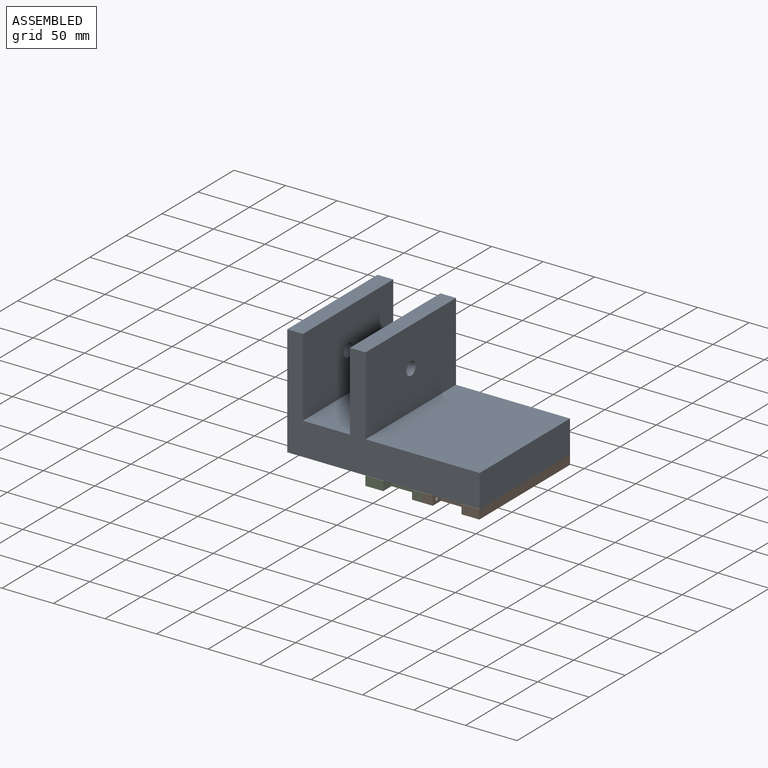
[diagram: assembled view]
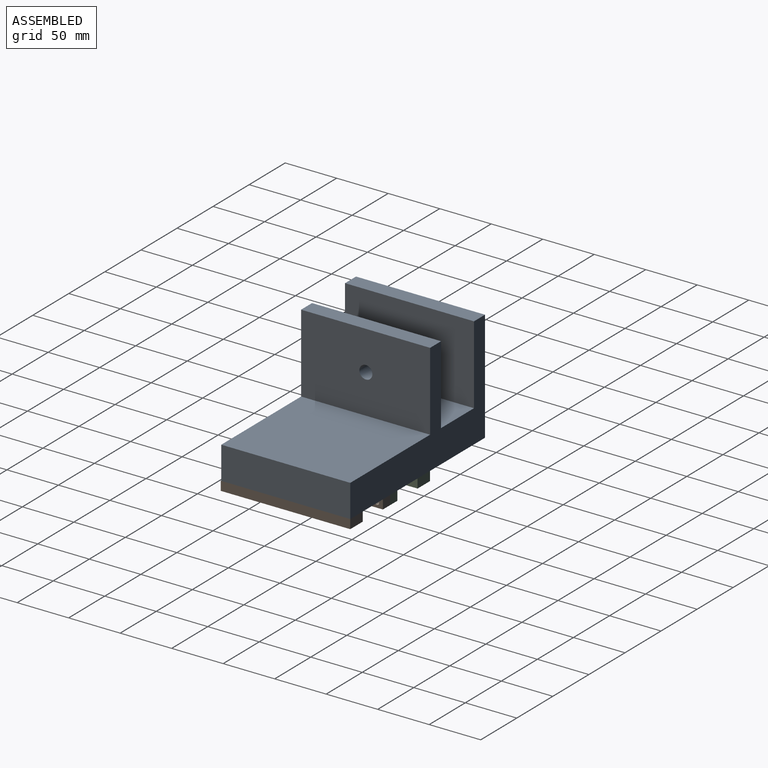
[diagram: assembled view, second angle]
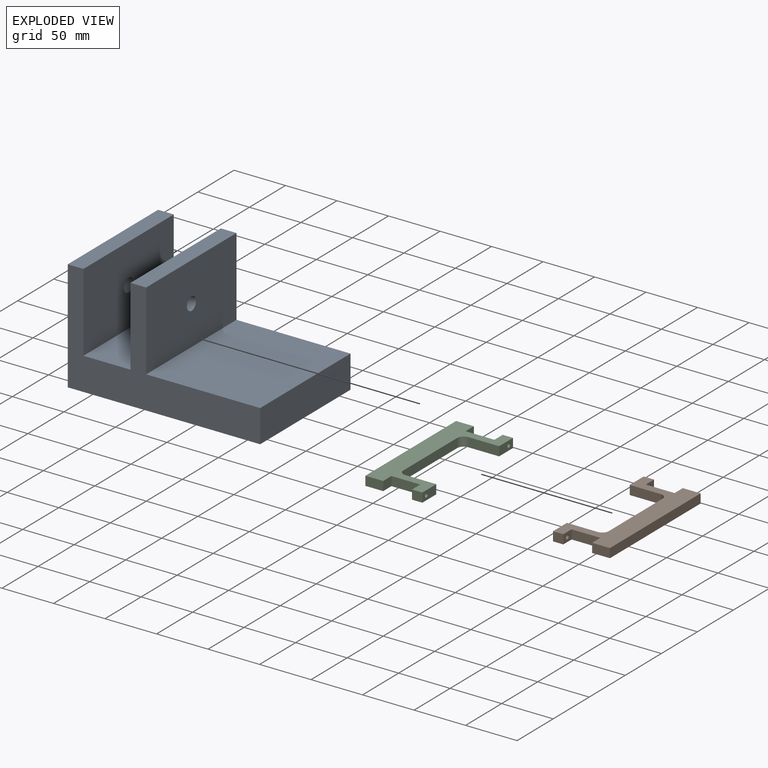
[diagram: exploded view]
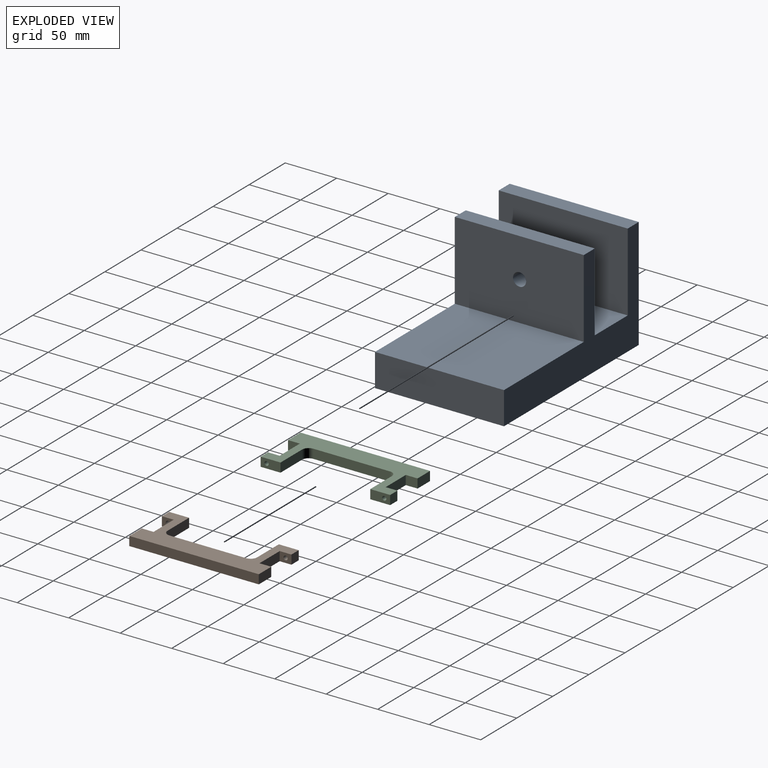
[diagram: exploded view, second angle]
ASSEMBLY  parts=3 mates=2
PART A: 31 faces, bbox 186.8x125.2x108 mm
  f0: plane 125.22x110.67mm, normal (0,0,1), area 13858.7mm2, adj f2,f3,f4,f18
  f1: plane 125.22x45.72mm, normal (0,0,1), area 5725.1mm2, adj f2,f4,f16,f19
  f2: plane 186.79x107.95mm, normal (0,-1,0), area 8247mm2, adj f0,f1,f3,f13,f15,f16,f17,f18
  f3: plane 125.22x31.75mm, normal (1,0,0), area 3975.8mm2, adj f0,f2,f4,f13
  f4: plane 186.79x107.95mm, normal (0,1,0), area 8247mm2, adj f0,f1,f3,f13,f15,f16,f17,f18
  f5: plane 59.79x13.97mm, normal (0,1,0), area 835.3mm2, adj f6,f12,f13,f27
  f6: cylinder r=6.35mm len=13.97mm, axis (0,0,1), area 139.3mm2, adj f5,f7,f13,f25
  f7: plane 74.42x13.97mm, normal (1,0,0), area 1039.7mm2, adj f6,f8,f13,f23
  f8: cylinder r=6.35mm len=13.97mm, axis (0,0,1), area 139.3mm2, adj f7,f9,f13,f24
  f9: plane 59.79x13.97mm, normal (0,-1,0), area 835.3mm2, adj f8,f10,f13,f26
  f10: cylinder r=6.35mm len=13.97mm, axis (0,0,1), area 139.3mm2, adj f9,f11,f13,f28
  f11: plane 74.42x13.97mm, normal (-1,0,0), area 1039.7mm2, adj f10,f12,f13,f30
  f12: cylinder r=6.35mm len=13.97mm, axis (0,0,1), area 139.3mm2, adj f5,f11,f13,f29
  f13: plane 186.79x125.22mm, normal (0,0,-1), area 17109.4mm2, adj f2,f3,f4,f5,f6,f7,f8,f9
  f14: plane 76.96x62.33mm, normal (0,0,-1), area 4795.8mm2, adj f23,f24,f25,f26,f27,f28,f29,f30
  f15: plane 125.22x107.95mm, normal (-1,0,0), area 13391mm2, adj f2,f4,f13,f17,f22
  f16: plane 125.22x76.2mm, normal (1,0,0), area 9415.2mm2, adj f1,f2,f4,f17,f22
  f17: plane 125.22x15.24mm, normal (0,0,1), area 1908.4mm2, adj f2,f4,f15,f16
  f18: plane 125.22x76.2mm, normal (1,0,0), area 9415.2mm2, adj f0,f2,f4,f20,f21
  f19: plane 125.22x76.2mm, normal (-1,0,0), area 9415.2mm2, adj f1,f2,f4,f20,f21
  f20: plane 125.22x15.16mm, normal (0,0,1), area 1898.2mm2, adj f2,f4,f18,f19
  f21: cylinder r=6.35mm len=15.16mm, axis (1,0,0), area 604.8mm2, adj f18,f19
  f22: cylinder r=6.35mm len=15.24mm, axis (1,0,0), area 608mm2, adj f15,f16
  f23: plane 74.42x5.08mm, normal (0.71,0,-0.71), area 534.7mm2, adj f7,f14,f24,f25
  f24: cone r=6.35mm half-angle=45deg, axis (0,0,-1), area 43mm2, adj f8,f14,f23,f26
  f25: cone r=6.35mm half-angle=45deg, axis (0,0,-1), area 43mm2, adj f6,f14,f23,f27
  f26: plane 59.79x5.08mm, normal (0,-0.71,-0.71), area 429.6mm2, adj f9,f14,f24,f28
  f27: plane 59.79x5.08mm, normal (0,0.71,-0.71), area 429.6mm2, adj f5,f14,f25,f29
  f28: cone r=6.35mm half-angle=45deg, axis (0,0,-1), area 43mm2, adj f10,f14,f26,f30
  f29: cone r=6.35mm half-angle=45deg, axis (0,0,-1), area 43mm2, adj f12,f14,f27,f30
  f30: plane 74.42x5.08mm, normal (-0.71,0,-0.71), area 534.7mm2, adj f11,f14,f28,f29
PART B: 22 faces, bbox 55.3x125.7x8.9 mm
  f0: plane 17.3x8.89mm, normal (0,1,0), area 153.8mm2, adj f1,f2,f8,f9
  f1: plane 125.73x55.3mm, normal (0,0,1), area 3173.1mm2, adj f0,f2,f3,f4,f5,f6,f7,f9
  f2: plane 125.73x8.89mm, normal (-1,0,0), area 1117.7mm2, adj f0,f1,f8,f13
  f3: plane 74.42x8.89mm, normal (1,0,0), area 661.6mm2, adj f1,f4,f8,f14
  f4: cylinder r=6.35mm len=8.89mm, axis (0,0,-1), area 88.7mm2, adj f1,f3,f5,f8
  f5: plane 29.9x8.89mm, normal (0,-1,0), area 265.8mm2, adj f1,f4,f6,f8
  f6: plane 19.3x8.89mm, normal (1,0,0), area 158.8mm2, adj f1,f5,f7,f8,f12
  f7: plane 10.06x8.89mm, normal (0,1,0), area 89.4mm2, adj f1,f6,f8,f10
  f8: plane 125.73x55.3mm, normal (0,0,-1), area 3173.1mm2, adj f0,f2,f3,f4,f5,f6,f7,f9
  f9: plane 11.43x8.89mm, normal (1,0,0), area 101.6mm2, adj f0,f1,f8,f11
  f10: plane 11.43x8.89mm, normal (-1,0,0), area 88.8mm2, adj f1,f7,f8,f11,f12
  f11: plane 27.94x8.89mm, normal (0,1,0), area 248.4mm2, adj f1,f8,f9,f10
  f12: cylinder r=2.02mm len=10.06mm, axis (-1,0,0), area 127.6mm2, adj f6,f10
  f13: plane 17.3x8.89mm, normal (0,-1,0), area 153.8mm2, adj f1,f2,f8,f18
  f14: cylinder r=6.35mm len=8.89mm, axis (0,0,-1), area 88.7mm2, adj f1,f3,f8,f15
  f15: plane 29.9x8.89mm, normal (0,1,0), area 265.8mm2, adj f1,f8,f14,f16
  f16: plane 19.3x8.89mm, normal (1,0,0), area 158.8mm2, adj f1,f8,f15,f17,f21
  f17: plane 10.06x8.89mm, normal (0,-1,0), area 89.4mm2, adj f1,f8,f16,f19
  f18: plane 11.43x8.89mm, normal (1,0,0), area 101.6mm2, adj f1,f8,f13,f20
  f19: plane 11.43x8.89mm, normal (-1,0,0), area 88.8mm2, adj f1,f8,f17,f20,f21
  f20: plane 27.94x8.89mm, normal (0,-1,0), area 248.4mm2, adj f1,f8,f18,f19
  f21: cylinder r=2.02mm len=10.06mm, axis (-1,0,0), area 127.6mm2, adj f16,f19
PART C: same geometry as B
PLACE A t=(40.7,9.26,14.28)mm
PLACE B rot(axis=(0,-1,0),180deg) t=(-38.27,12.74,-4.77)mm
PLACE C rot(axis=(0.47,0.86,0.2),0deg) t=(110.83,12.74,-13.66)mm
MATE fastened C.f12 <-> B.f12  axis (1,0,0) through (36.28,86.74,-9.21)mm
MATE fastened B.f2 <-> A.f3  axis (-1,0,0) through (91.57,92.46,-4.77)mm
